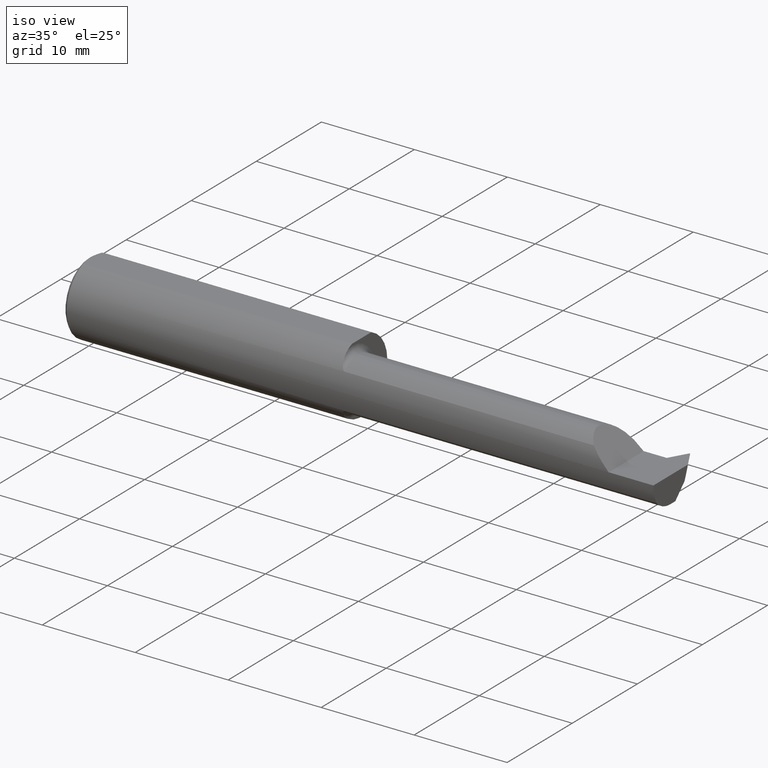
[diagram: clean part render]
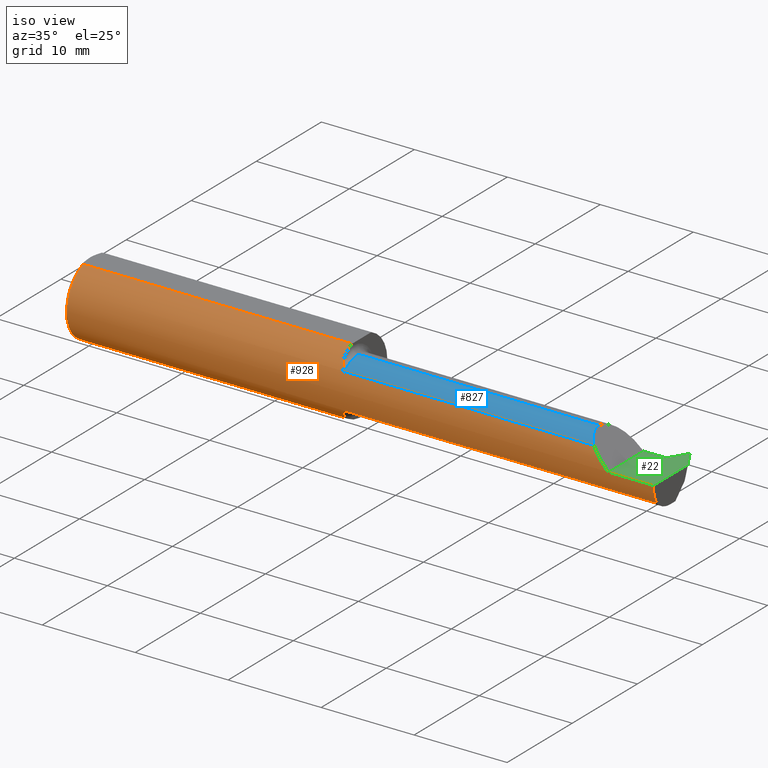
[diagram: same view with three faces highlighted in distinct colors, each labeled with its STEP entity id]
A machine part, iso view with three faces highlighted in distinct colors.
Their STEP definitions:

[orange] entity #928 — the highlighted cylindrical surface (partial cylindrical patch) has radius 3.9649 mm, axis along (-1, -0, -0).
#2 = CARTESIAN_POINT ( 'NONE',  ( 0.01499999999999970281, 0.000000000000000000, 0.000000000000000000 ) ) ;
#6 = B_SPLINE_CURVE_WITH_KNOTS ( 'NONE', 3,
 ( #17, #317, #382, #675, #607, #13, #903, #243, #924, #474, #104, #484, #115, #462 ),
 .UNSPECIFIED., .F., .F.,
 ( 4, 2, 2, 2, 2, 2, 4 ),
 ( 0.000000000000000000, 0.0001427501031775189650, 0.0002855002063550383094, 0.0005710004127100784619, 0.001142000825420159743, 0.001713001238130241024, 0.002284001650840322521 ),
 .UNSPECIFIED. ) ;
#8 = VERTEX_POINT ( 'NONE', #734 ) ;
#13 = CARTESIAN_POINT ( 'NONE',  ( 1.169135453872435892, -0.1320388560634702391, 0.08332276230954653584 ) ) ;
#17 = CARTESIAN_POINT ( 'NONE',  ( 1.180000000000000160, -0.1368622504537204410, 0.07507286061382698050 ) ) ;
#18 = EDGE_CURVE ( 'NONE', #233, #297, #145, .T. ) ;
#41 = EDGE_CURVE ( 'NONE', #890, #160, #497, .T. ) ;
#53 = EDGE_CURVE ( 'NONE', #297, #292, #698, .T. ) ;
#59 = CARTESIAN_POINT ( 'NONE',  ( 1.163312382054487060, -0.1243204233981917706, -0.09465517963088572462 ) ) ;
#62 = CARTESIAN_POINT ( 'NONE',  ( 1.161298582722805062, -0.1198197303235668532, -0.1003181488768664781 ) ) ;
#64 = CARTESIAN_POINT ( 'NONE',  ( 1.780499999999999972, -0.1368622504537204410, -0.07507286061382698050 ) ) ;
#65 = VERTEX_POINT ( 'NONE', #86 ) ;
#70 = CARTESIAN_POINT ( 'NONE',  ( 1.180000000000000160, -0.1368622504537204410, -0.07507286061382698050 ) ) ;
#72 = EDGE_CURVE ( 'NONE', #793, #180, #270, .T. ) ;
#78 = CARTESIAN_POINT ( 'NONE',  ( 1.155000000000000027, 0.000000000000000000, 0.000000000000000000 ) ) ;
#86 = CARTESIAN_POINT ( 'NONE',  ( 1.155000000000000027, -0.08082776769509972259, 0.1335443071397166837 ) ) ;
#104 = CARTESIAN_POINT ( 'NONE',  ( 1.156962149267435569, -0.1047579505689460039, 0.1159640188207535366 ) ) ;
#109 = CARTESIAN_POINT ( 'NONE',  ( 2.500000000000000000, -0.1560999999999999888, -3.979970649922725226E-17 ) ) ;
#110 = AXIS2_PLACEMENT_3D ( 'NONE', #312, #904, #396 ) ;
#115 = CARTESIAN_POINT ( 'NONE',  ( 1.155000000000000249, -0.08722028877555595971, 0.1296752301274216590 ) ) ;
#117 = VERTEX_POINT ( 'NONE', #705 ) ;
#131 =( BOUNDED_CURVE ( )  B_SPLINE_CURVE ( 3, ( #721, #726, #865, #435 ),
 .UNSPECIFIED., .F., .F. ) 
 B_SPLINE_CURVE_WITH_KNOTS ( ( 4, 4 ),
 ( 4.713029595418895212, 5.214101826882463264 ),
 .UNSPECIFIED. ) 
 CURVE ( )  GEOMETRIC_REPRESENTATION_ITEM ( )  RATIONAL_B_SPLINE_CURVE ( ( 1.000000000000000000, 0.9791864302132653464, 0.9791864302132653464, 1.000000000000000000 ) ) 
 REPRESENTATION_ITEM ( '' )  );
#139 = CARTESIAN_POINT ( 'NONE',  ( 0.01499999999999970281, 0.000000000000000000, -0.1560999999999999888 ) ) ;
#145 = CIRCLE ( 'NONE', #788, 0.1560999999999999888 ) ;
#157 = AXIS2_PLACEMENT_3D ( 'NONE', #694, #902, #599 ) ;
#160 = VERTEX_POINT ( 'NONE', #248 ) ;
#163 = DIRECTION ( 'NONE',  ( 0.000000000000000000, 0.000000000000000000, -1.000000000000000000 ) ) ;
#167 = DIRECTION ( 'NONE',  ( 1.000000000000000000, 0.000000000000000000, 0.000000000000000000 ) ) ;
#169 = ORIENTED_EDGE ( 'NONE', *, *, #684, .T. ) ;
#177 = LINE ( 'NONE', #109, #513 ) ;
#178 = B_SPLINE_CURVE_WITH_KNOTS ( 'NONE', 3,
 ( #919, #411, #700, #62, #59, #708, #366, #289, #656, #360, #573, #650 ),
 .UNSPECIFIED., .F., .F.,
 ( 4, 2, 2, 2, 2, 4 ),
 ( 0.000000000000000000, 0.001123756246128505441, 0.001685634369192758487, 0.001966573430724887286, 0.002107042961490952770, 0.002247512492257017387 ),
 .UNSPECIFIED. ) ;
#179 = CARTESIAN_POINT ( 'NONE',  ( 0.01499999999999970975, -0.05756040305626781983, 0.1450999999999999512 ) ) ;
#180 = VERTEX_POINT ( 'NONE', #489 ) ;
#215 = LINE ( 'NONE', #718, #934 ) ;
#231 = DIRECTION ( 'NONE',  ( 0.000000000000000000, 0.000000000000000000, -1.000000000000000000 ) ) ;
#233 = VERTEX_POINT ( 'NONE', #179 ) ;
#234 = CARTESIAN_POINT ( 'NONE',  ( 2.500000000000000000, -0.1560999999999999333, -3.979970649922725226E-17 ) ) ;
#235 = VECTOR ( 'NONE', #715, 39.37007874015748143 ) ;
#243 = CARTESIAN_POINT ( 'NONE',  ( 1.163324357153332711, -0.1243322553945040709, 0.09463600456597345834 ) ) ;
#248 = CARTESIAN_POINT ( 'NONE',  ( 2.500000000000000000, -0.1368622504537203854, -0.07507286061382703601 ) ) ;
#253 = AXIS2_PLACEMENT_3D ( 'NONE', #78, #373, #231 ) ;
#268 = EDGE_CURVE ( 'NONE', #160, #381, #580, .T. ) ;
#270 = CIRCLE ( 'NONE', #347, 0.1560999999999999888 ) ;
#287 = DIRECTION ( 'NONE',  ( 0.000000000000000000, 0.000000000000000000, -1.000000000000000000 ) ) ;
#289 = CARTESIAN_POINT ( 'NONE',  ( 1.172325674773646575, -0.1344725336059486853, -0.07928898134248278662 ) ) ;
#292 = VERTEX_POINT ( 'NONE', #723 ) ;
#293 = CARTESIAN_POINT ( 'NONE',  ( 2.500000000000000000, 0.05756040305626781983, 0.1450999999999999512 ) ) ;
#294 = CARTESIAN_POINT ( 'NONE',  ( 1.155000000000000027, -0.08082776769509972259, -0.1335443071397166837 ) ) ;
#297 = VERTEX_POINT ( 'NONE', #139 ) ;
#307 = ORIENTED_EDGE ( 'NONE', *, *, #664, .T. ) ;
#312 = CARTESIAN_POINT ( 'NONE',  ( 2.500000000000000000, 0.000000000000000000, 0.000000000000000000 ) ) ;
#317 = CARTESIAN_POINT ( 'NONE',  ( 1.178086506300958236, -0.1368622504537204410, 0.07507286061382698050 ) ) ;
#318 = CARTESIAN_POINT ( 'NONE',  ( 2.310000000000000053, 0.000000000000000000, 0.000000000000000000 ) ) ;
#343 = VERTEX_POINT ( 'NONE', #294 ) ;
#347 = AXIS2_PLACEMENT_3D ( 'NONE', #318, #687, #516 ) ;
#353 = VERTEX_POINT ( 'NONE', #941 ) ;
#359 = ORIENTED_EDGE ( 'NONE', *, *, #18, .T. ) ;
#360 = CARTESIAN_POINT ( 'NONE',  ( 1.176349781358732471, -0.1364086230541974309, -0.07590362166592549975 ) ) ;
#366 = CARTESIAN_POINT ( 'NONE',  ( 1.169174461442129553, -0.1320749731185601461, -0.08326458372355888260 ) ) ;
#373 = DIRECTION ( 'NONE',  ( 1.000000000000000000, 0.000000000000000000, 0.000000000000000000 ) ) ;
#381 = VERTEX_POINT ( 'NONE', #70 ) ;
#382 = CARTESIAN_POINT ( 'NONE',  ( 1.176348515781200810, -0.1364107636049785577, 0.07590013438261609957 ) ) ;
#385 = ORIENTED_EDGE ( 'NONE', *, *, #722, .F. ) ;
#388 = DIRECTION ( 'NONE',  ( 0.000000000000000000, 0.000000000000000000, -1.000000000000000000 ) ) ;
#396 = DIRECTION ( 'NONE',  ( 0.000000000000000000, 0.000000000000000000, -1.000000000000000000 ) ) ;
#410 = EDGE_CURVE ( 'NONE', #881, #233, #600, .T. ) ;
#411 = CARTESIAN_POINT ( 'NONE',  ( 1.155000000000000249, -0.09362651965208496074, -0.1257978552532720284 ) ) ;
#435 = CARTESIAN_POINT ( 'NONE',  ( 2.235027139386173367, -0.1368622504537203854, 0.07507286061382700826 ) ) ;
#439 = EDGE_CURVE ( 'NONE', #343, #353, #667, .T. ) ;
#441 = AXIS2_PLACEMENT_3D ( 'NONE', #745, #668, #388 ) ;
#454 = AXIS2_PLACEMENT_3D ( 'NONE', #885, #167, #163 ) ;
#459 = CARTESIAN_POINT ( 'NONE',  ( 2.500000000000000000, -0.05756040305626781983, 0.1450999999999999512 ) ) ;
#462 = CARTESIAN_POINT ( 'NONE',  ( 1.155000000000000027, -0.08082776769509972259, 0.1335443071397166837 ) ) ;
#463 = EDGE_CURVE ( 'NONE', #881, #65, #739, .T. ) ;
#473 = FACE_OUTER_BOUND ( 'NONE', #906, .T. ) ;
#474 = CARTESIAN_POINT ( 'NONE',  ( 1.158112206751179540, -0.1100485138537333346, 0.1109440811778998892 ) ) ;
#481 = ORIENTED_EDGE ( 'NONE', *, *, #72, .T. ) ;
#484 = CARTESIAN_POINT ( 'NONE',  ( 1.155398932116762589, -0.09332769694267489813, 0.1253468102978375076 ) ) ;
#489 = CARTESIAN_POINT ( 'NONE',  ( 2.310000000000000053, -0.1560999679692471886, 9.999999999973052634E-05 ) ) ;
#497 = CIRCLE ( 'NONE', #110, 0.1560999999999999888 ) ;
#500 = DIRECTION ( 'NONE',  ( 1.000000000000000000, -0.000000000000000000, -0.000000000000000000 ) ) ;
#506 = DIRECTION ( 'NONE',  ( 1.000000000000000000, 0.000000000000000000, 0.000000000000000000 ) ) ;
#513 = VECTOR ( 'NONE', #615, 39.37007874015748143 ) ;
#516 = DIRECTION ( 'NONE',  ( 0.000000000000000000, 0.000000000000000000, 1.000000000000000000 ) ) ;
#529 = EDGE_CURVE ( 'NONE', #117, #65, #6, .T. ) ;
#533 = DIRECTION ( 'NONE',  ( -1.000000000000000000, -0.000000000000000000, -0.000000000000000000 ) ) ;
#538 = ORIENTED_EDGE ( 'NONE', *, *, #410, .T. ) ;
#541 = VECTOR ( 'NONE', #533, 39.37007874015748143 ) ;
#573 = CARTESIAN_POINT ( 'NONE',  ( 1.178106053287835131, -0.1368622504537228002, -0.07507286061382427433 ) ) ;
#578 = ORIENTED_EDGE ( 'NONE', *, *, #41, .F. ) ;
#580 = LINE ( 'NONE', #64, #235 ) ;
#584 = LINE ( 'NONE', #293, #789 ) ;
#599 = DIRECTION ( 'NONE',  ( 0.000000000000000000, 0.000000000000000000, 1.000000000000000000 ) ) ;
#600 = LINE ( 'NONE', #459, #541 ) ;
#604 = EDGE_CURVE ( 'NONE', #890, #793, #177, .T. ) ;
#607 = CARTESIAN_POINT ( 'NONE',  ( 1.172300575926264798, -0.1344565892346399061, 0.07931625727899710432 ) ) ;
#615 = DIRECTION ( 'NONE',  ( -1.000000000000000000, -0.000000000000000000, -0.000000000000000000 ) ) ;
#650 = CARTESIAN_POINT ( 'NONE',  ( 1.180000000000000160, -0.1368622504537204410, -0.07507286061382698050 ) ) ;
#656 = CARTESIAN_POINT ( 'NONE',  ( 1.173506495904680591, -0.1352163519649313972, -0.07800775850415053725 ) ) ;
#664 = EDGE_CURVE ( 'NONE', #343, #381, #178, .T. ) ;
#667 = CIRCLE ( 'NONE', #253, 0.1560999999999999888 ) ;
#668 = DIRECTION ( 'NONE',  ( 1.000000000000000000, -0.000000000000000000, -0.000000000000000000 ) ) ;
#675 = CARTESIAN_POINT ( 'NONE',  ( 1.173464868753674395, -0.1351961852369925055, 0.07804305429669795846 ) ) ;
#679 = CARTESIAN_POINT ( 'NONE',  ( 1.155000000000000027, -0.05756040305626783371, 0.1450999999999999512 ) ) ;
#684 = EDGE_CURVE ( 'NONE', #180, #8, #131, .T. ) ;
#687 = DIRECTION ( 'NONE',  ( -1.000000000000000000, -0.000000000000000000, -0.000000000000000000 ) ) ;
#694 = CARTESIAN_POINT ( 'NONE',  ( 2.500000000000000000, 0.000000000000000000, 0.000000000000000000 ) ) ;
#698 = CIRCLE ( 'NONE', #441, 0.1560999999999999888 ) ;
#700 = CARTESIAN_POINT ( 'NONE',  ( 1.156469879655010136, -0.1049921135599800326, -0.1164346218518445691 ) ) ;
#705 = CARTESIAN_POINT ( 'NONE',  ( 1.180000000000000160, -0.1368622504537204410, 0.07507286061382698050 ) ) ;
#708 = CARTESIAN_POINT ( 'NONE',  ( 1.167567871908215427, -0.1302407872897888563, -0.08611932130684256392 ) ) ;
#713 = DIRECTION ( 'NONE',  ( 1.000000000000000000, 0.000000000000000000, 0.000000000000000000 ) ) ;
#715 = DIRECTION ( 'NONE',  ( -1.000000000000000000, -0.000000000000000000, -0.000000000000000000 ) ) ;
#718 = CARTESIAN_POINT ( 'NONE',  ( 1.780499999999999972, -0.1368622504537204410, 0.07507286061382698050 ) ) ;
#721 = CARTESIAN_POINT ( 'NONE',  ( 2.310000000000000053, -0.1560999679692471886, 9.999999999973052634E-05 ) ) ;
#722 = EDGE_CURVE ( 'NONE', #117, #8, #215, .T. ) ;
#723 = CARTESIAN_POINT ( 'NONE',  ( 0.01499999999999970281, 0.05756040305626781983, 0.1450999999999999512 ) ) ;
#726 = CARTESIAN_POINT ( 'NONE',  ( 2.283651030168674989, -0.1560830884207283498, 0.02644896983132509483 ) ) ;
#730 = ORIENTED_EDGE ( 'NONE', *, *, #529, .T. ) ;
#734 = CARTESIAN_POINT ( 'NONE',  ( 2.235027139386173367, -0.1368622504537203854, 0.07507286061382700826 ) ) ;
#739 = CIRCLE ( 'NONE', #454, 0.1560999999999999888 ) ;
#745 = CARTESIAN_POINT ( 'NONE',  ( 0.01499999999999970281, 0.000000000000000000, 0.000000000000000000 ) ) ;
#750 = ORIENTED_EDGE ( 'NONE', *, *, #463, .F. ) ;
#755 = ORIENTED_EDGE ( 'NONE', *, *, #604, .T. ) ;
#760 = EDGE_CURVE ( 'NONE', #292, #353, #584, .T. ) ;
#779 = CARTESIAN_POINT ( 'NONE',  ( 2.310000000000000053, -0.1560999999999999888, -3.979970649922725226E-17 ) ) ;
#781 = ORIENTED_EDGE ( 'NONE', *, *, #268, .F. ) ;
#788 = AXIS2_PLACEMENT_3D ( 'NONE', #2, #500, #287 ) ;
#789 = VECTOR ( 'NONE', #713, 39.37007874015748143 ) ;
#793 = VERTEX_POINT ( 'NONE', #779 ) ;
#809 = ORIENTED_EDGE ( 'NONE', *, *, #439, .F. ) ;
#810 = ORIENTED_EDGE ( 'NONE', *, *, #53, .T. ) ;
#845 = ORIENTED_EDGE ( 'NONE', *, *, #760, .T. ) ;
#865 = CARTESIAN_POINT ( 'NONE',  ( 2.258128869355540136, -0.1495342103855425986, 0.05197113064445998271 ) ) ;
#881 = VERTEX_POINT ( 'NONE', #679 ) ;
#885 = CARTESIAN_POINT ( 'NONE',  ( 1.155000000000000027, 0.000000000000000000, 0.000000000000000000 ) ) ;
#890 = VERTEX_POINT ( 'NONE', #234 ) ;
#902 = DIRECTION ( 'NONE',  ( -1.000000000000000000, -0.000000000000000000, -0.000000000000000000 ) ) ;
#903 = CARTESIAN_POINT ( 'NONE',  ( 1.167545102296320136, -0.1302115092214859438, 0.08616258549502013586 ) ) ;
#904 = DIRECTION ( 'NONE',  ( 1.000000000000000000, 0.000000000000000000, 0.000000000000000000 ) ) ;
#906 = EDGE_LOOP ( 'NONE', ( #781, #578, #755, #481, #169, #385, #730, #750, #538, #359, #810, #845, #809, #307 ) ) ;
#919 = CARTESIAN_POINT ( 'NONE',  ( 1.155000000000000027, -0.08082776769509972259, -0.1335443071397166837 ) ) ;
#924 = CARTESIAN_POINT ( 'NONE',  ( 1.161300778209995999, -0.1198130594394493653, 0.1003199648005457661 ) ) ;
#928 = ADVANCED_FACE ( 'NONE', ( #473 ), #958, .T. ) ;
#934 = VECTOR ( 'NONE', #506, 39.37007874015748143 ) ;
#941 = CARTESIAN_POINT ( 'NONE',  ( 1.155000000000000027, 0.05756040305626781289, 0.1450999999999999512 ) ) ;
#958 = CYLINDRICAL_SURFACE ( 'NONE', #157, 0.1560999999999999888 ) ;

[blue] entity #827 — the highlighted cylindrical surface (edge-blend (fillet) strip) has radius 2.8194 mm, axis along (-1, -0, -0).
#8 = VERTEX_POINT ( 'NONE', #734 ) ;
#74 = CARTESIAN_POINT ( 'NONE',  ( 2.211790491667020575, -0.1155267122845504424, 0.09830950833298025826 ) ) ;
#103 = DIRECTION ( 'NONE',  ( -1.000000000000000000, -0.000000000000000000, -0.000000000000000000 ) ) ;
#117 = VERTEX_POINT ( 'NONE', #705 ) ;
#137 = EDGE_CURVE ( 'NONE', #437, #303, #612, .T. ) ;
#147 = DIRECTION ( 'NONE',  ( 0.000000000000000000, 0.000000000000000000, 1.000000000000000000 ) ) ;
#182 = DIRECTION ( 'NONE',  ( 0.000000000000000000, 0.000000000000000000, -1.000000000000000000 ) ) ;
#200 = ORIENTED_EDGE ( 'NONE', *, *, #137, .T. ) ;
#209 = ORIENTED_EDGE ( 'NONE', *, *, #232, .T. ) ;
#215 = LINE ( 'NONE', #718, #934 ) ;
#232 = EDGE_CURVE ( 'NONE', #303, #117, #665, .T. ) ;
#246 = CARTESIAN_POINT ( 'NONE',  ( 2.199100000000000499, -0.08664595039291324297, 0.1110000000000000431 ) ) ;
#250 = CARTESIAN_POINT ( 'NONE',  ( 2.235027139386173367, -0.1368622504537203854, 0.07507286061382700826 ) ) ;
#303 = VERTEX_POINT ( 'NONE', #574 ) ;
#361 =( BOUNDED_CURVE ( )  B_SPLINE_CURVE ( 3, ( #751, #246, #74, #250 ),
 .UNSPECIFIED., .F., .T. ) 
 B_SPLINE_CURVE_WITH_KNOTS ( ( 4, 4 ),
 ( 0.000000000000000000, 0.8280247010054025969 ),
 .UNSPECIFIED. ) 
 CURVE ( )  GEOMETRIC_REPRESENTATION_ITEM ( )  RATIONAL_B_SPLINE_CURVE ( ( 1.000000000000000000, 0.9436760562907885452, 0.9436760562907885452, 1.000000000000000000 ) ) 
 REPRESENTATION_ITEM ( '' )  );
#437 = VERTEX_POINT ( 'NONE', #820 ) ;
#506 = DIRECTION ( 'NONE',  ( 1.000000000000000000, 0.000000000000000000, 0.000000000000000000 ) ) ;
#545 = CARTESIAN_POINT ( 'NONE',  ( 1.180000000000000160, -0.05509999999999999620, 0.000000000000000000 ) ) ;
#574 = CARTESIAN_POINT ( 'NONE',  ( 1.180000000000000160, -0.05509999999999999620, 0.1110000000000000014 ) ) ;
#612 = LINE ( 'NONE', #627, #883 ) ;
#613 = ORIENTED_EDGE ( 'NONE', *, *, #921, .F. ) ;
#627 = CARTESIAN_POINT ( 'NONE',  ( 1.155000000000000027, -0.05509999999999999620, 0.1110000000000000014 ) ) ;
#651 = AXIS2_PLACEMENT_3D ( 'NONE', #545, #844, #182 ) ;
#665 = CIRCLE ( 'NONE', #651, 0.1110000000000000014 ) ;
#705 = CARTESIAN_POINT ( 'NONE',  ( 1.180000000000000160, -0.1368622504537204410, 0.07507286061382698050 ) ) ;
#718 = CARTESIAN_POINT ( 'NONE',  ( 1.780499999999999972, -0.1368622504537204410, 0.07507286061382698050 ) ) ;
#722 = EDGE_CURVE ( 'NONE', #117, #8, #215, .T. ) ;
#731 = CYLINDRICAL_SURFACE ( 'NONE', #916, 0.1110000000000000014 ) ;
#734 = CARTESIAN_POINT ( 'NONE',  ( 2.235027139386173367, -0.1368622504537203854, 0.07507286061382700826 ) ) ;
#742 = ORIENTED_EDGE ( 'NONE', *, *, #722, .T. ) ;
#751 = CARTESIAN_POINT ( 'NONE',  ( 2.199100000000000499, -0.05509999999999999620, 0.1110000000000000014 ) ) ;
#820 = CARTESIAN_POINT ( 'NONE',  ( 2.199100000000000499, -0.05509999999999999620, 0.1110000000000000014 ) ) ;
#827 = ADVANCED_FACE ( 'NONE', ( #895 ), #731, .T. ) ;
#844 = DIRECTION ( 'NONE',  ( 1.000000000000000000, 0.000000000000000000, 0.000000000000000000 ) ) ;
#875 = EDGE_LOOP ( 'NONE', ( #613, #200, #209, #742 ) ) ;
#879 = CARTESIAN_POINT ( 'NONE',  ( 1.155000000000000027, -0.05509999999999999620, 0.000000000000000000 ) ) ;
#883 = VECTOR ( 'NONE', #925, 39.37007874015748143 ) ;
#895 = FACE_OUTER_BOUND ( 'NONE', #875, .T. ) ;
#916 = AXIS2_PLACEMENT_3D ( 'NONE', #879, #103, #147 ) ;
#921 = EDGE_CURVE ( 'NONE', #437, #8, #361, .T. ) ;
#925 = DIRECTION ( 'NONE',  ( -1.000000000000000000, -0.000000000000000000, -0.000000000000000000 ) ) ;
#934 = VECTOR ( 'NONE', #506, 39.37007874015748143 ) ;

[green] entity #22 — the highlighted planar face has unit normal (-0, 0, -1).
#22 = ADVANCED_FACE ( 'NONE', ( #519 ), #812, .F. ) ;
#25 = DIRECTION ( 'NONE',  ( -0.000000000000000000, 1.000000000000000000, -0.000000000000000000 ) ) ;
#30 = LINE ( 'NONE', #914, #156 ) ;
#44 = CARTESIAN_POINT ( 'NONE',  ( 2.406716679003209070, 0.05389999999999999653, 0.000000000000000000 ) ) ;
#49 = ORIENTED_EDGE ( 'NONE', *, *, #224, .F. ) ;
#54 = VECTOR ( 'NONE', #25, 39.37007874015748143 ) ;
#55 = CARTESIAN_POINT ( 'NONE',  ( 2.400999999999999801, 0.05389999999999999653, 0.000000000000000000 ) ) ;
#83 = DIRECTION ( 'NONE',  ( 0.5000000000000022204, -0.8660254037844373753, 0.000000000000000000 ) ) ;
#90 = EDGE_CURVE ( 'NONE', #802, #291, #899, .T. ) ;
#95 = DIRECTION ( 'NONE',  ( -1.000000000000000000, 0.000000000000000000, 0.000000000000000000 ) ) ;
#109 = CARTESIAN_POINT ( 'NONE',  ( 2.500000000000000000, -0.1560999999999999888, -3.979970649922725226E-17 ) ) ;
#123 = ORIENTED_EDGE ( 'NONE', *, *, #505, .F. ) ;
#153 = CARTESIAN_POINT ( 'NONE',  ( 2.452999999999999847, 0.1340650635094609855, 0.000000000000000000 ) ) ;
#156 = VECTOR ( 'NONE', #847, 39.37007874015748143 ) ;
#158 = DIRECTION ( 'NONE',  ( -0.000000000000000000, 1.000000000000000000, -0.000000000000000000 ) ) ;
#159 = CARTESIAN_POINT ( 'NONE',  ( 2.310000000000000053, 0.1749999999999999889, -3.979970649922725226E-17 ) ) ;
#177 = LINE ( 'NONE', #109, #513 ) ;
#186 = VECTOR ( 'NONE', #260, 39.37007874015748854 ) ;
#192 = EDGE_CURVE ( 'NONE', #770, #355, #858, .T. ) ;
#193 = EDGE_CURVE ( 'NONE', #355, #291, #691, .T. ) ;
#204 = VECTOR ( 'NONE', #328, 39.37007874015748143 ) ;
#224 = EDGE_CURVE ( 'NONE', #587, #770, #30, .T. ) ;
#234 = CARTESIAN_POINT ( 'NONE',  ( 2.500000000000000000, -0.1560999999999999333, -3.979970649922725226E-17 ) ) ;
#236 = VECTOR ( 'NONE', #158, 39.37007874015748143 ) ;
#242 = EDGE_CURVE ( 'NONE', #716, #587, #475, .T. ) ;
#245 = ORIENTED_EDGE ( 'NONE', *, *, #478, .F. ) ;
#252 = VECTOR ( 'NONE', #407, 39.37007874015748143 ) ;
#260 = DIRECTION ( 'NONE',  ( 0.5000000000000026645, 0.8660254037844370423, 0.000000000000000000 ) ) ;
#277 = ORIENTED_EDGE ( 'NONE', *, *, #192, .F. ) ;
#291 = VERTEX_POINT ( 'NONE', #368 ) ;
#328 = DIRECTION ( 'NONE',  ( -1.000000000000000000, -7.277506705368410665E-15, 0.000000000000000000 ) ) ;
#329 = ORIENTED_EDGE ( 'NONE', *, *, #242, .F. ) ;
#342 = DIRECTION ( 'NONE',  ( 1.000000000000000000, -0.000000000000000000, -0.000000000000000000 ) ) ;
#351 = CARTESIAN_POINT ( 'NONE',  ( 2.310000000000000053, 0.05590000000000001218, -3.979970649922725226E-17 ) ) ;
#355 = VERTEX_POINT ( 'NONE', #503 ) ;
#368 = CARTESIAN_POINT ( 'NONE',  ( 2.451750000000000096, 0.1318999999999999617, -3.979970649922725226E-17 ) ) ;
#391 = VECTOR ( 'NONE', #342, 39.37007874015748143 ) ;
#407 = DIRECTION ( 'NONE',  ( 1.000000000000000000, 0.000000000000000000, 0.000000000000000000 ) ) ;
#419 = CARTESIAN_POINT ( 'NONE',  ( 2.454250000000000043, 0.1318999999999999895, 0.000000000000000000 ) ) ;
#464 = DIRECTION ( 'NONE',  ( -0.000000000000000000, 0.000000000000000000, -1.000000000000000000 ) ) ;
#470 = CARTESIAN_POINT ( 'NONE',  ( 2.400999999999999801, 0.05590000000000001218, 0.000000000000000000 ) ) ;
#475 = LINE ( 'NONE', #765, #252 ) ;
#478 = EDGE_CURVE ( 'NONE', #802, #524, #811, .T. ) ;
#503 = CARTESIAN_POINT ( 'NONE',  ( 2.406716679003209070, 0.05389999999999999653, 0.000000000000000000 ) ) ;
#505 = EDGE_CURVE ( 'NONE', #793, #716, #893, .T. ) ;
#513 = VECTOR ( 'NONE', #615, 39.37007874015748143 ) ;
#519 = FACE_OUTER_BOUND ( 'NONE', #746, .T. ) ;
#523 = VECTOR ( 'NONE', #83, 39.37007874015748854 ) ;
#524 = VERTEX_POINT ( 'NONE', #744 ) ;
#587 = VERTEX_POINT ( 'NONE', #470 ) ;
#604 = EDGE_CURVE ( 'NONE', #890, #793, #177, .T. ) ;
#609 = ORIENTED_EDGE ( 'NONE', *, *, #193, .F. ) ;
#615 = DIRECTION ( 'NONE',  ( -1.000000000000000000, -0.000000000000000000, -0.000000000000000000 ) ) ;
#631 = CARTESIAN_POINT ( 'NONE',  ( 2.406716679003209070, 0.05389999999999999653, 0.000000000000000000 ) ) ;
#633 = ORIENTED_EDGE ( 'NONE', *, *, #90, .T. ) ;
#635 = EDGE_CURVE ( 'NONE', #890, #524, #764, .T. ) ;
#663 = ORIENTED_EDGE ( 'NONE', *, *, #635, .T. ) ;
#691 = LINE ( 'NONE', #631, #186 ) ;
#712 = AXIS2_PLACEMENT_3D ( 'NONE', #159, #464, #95 ) ;
#716 = VERTEX_POINT ( 'NONE', #351 ) ;
#744 = CARTESIAN_POINT ( 'NONE',  ( 2.500000000000000000, 0.05265867555372412412, 0.000000000000000000 ) ) ;
#746 = EDGE_LOOP ( 'NONE', ( #663, #245, #633, #609, #277, #49, #329, #123, #936 ) ) ;
#748 = CARTESIAN_POINT ( 'NONE',  ( 2.310000000000000053, 0.1749999999999999889, -3.979970649922725226E-17 ) ) ;
#754 = CARTESIAN_POINT ( 'NONE',  ( 2.310000000000000497, 0.1318999999999989348, -3.979970649922725226E-17 ) ) ;
#764 = LINE ( 'NONE', #768, #54 ) ;
#765 = CARTESIAN_POINT ( 'NONE',  ( 1.155000000000000027, 0.05590000000000001218, -3.979970649922725226E-17 ) ) ;
#768 = CARTESIAN_POINT ( 'NONE',  ( 2.500000000000000000, 0.1749999999999999889, -3.979970649922725226E-17 ) ) ;
#770 = VERTEX_POINT ( 'NONE', #55 ) ;
#779 = CARTESIAN_POINT ( 'NONE',  ( 2.310000000000000053, -0.1560999999999999888, -3.979970649922725226E-17 ) ) ;
#793 = VERTEX_POINT ( 'NONE', #779 ) ;
#802 = VERTEX_POINT ( 'NONE', #419 ) ;
#811 = LINE ( 'NONE', #153, #523 ) ;
#812 = PLANE ( 'NONE',  #712 ) ;
#847 = DIRECTION ( 'NONE',  ( 2.731847993664263613E-15, -1.000000000000000000, -0.000000000000000000 ) ) ;
#858 = LINE ( 'NONE', #44, #391 ) ;
#890 = VERTEX_POINT ( 'NONE', #234 ) ;
#893 = LINE ( 'NONE', #748, #236 ) ;
#899 = LINE ( 'NONE', #754, #204 ) ;
#914 = CARTESIAN_POINT ( 'NONE',  ( 2.400999999999999801, 0.05389999999999999653, 0.000000000000000000 ) ) ;
#936 = ORIENTED_EDGE ( 'NONE', *, *, #604, .F. ) ;